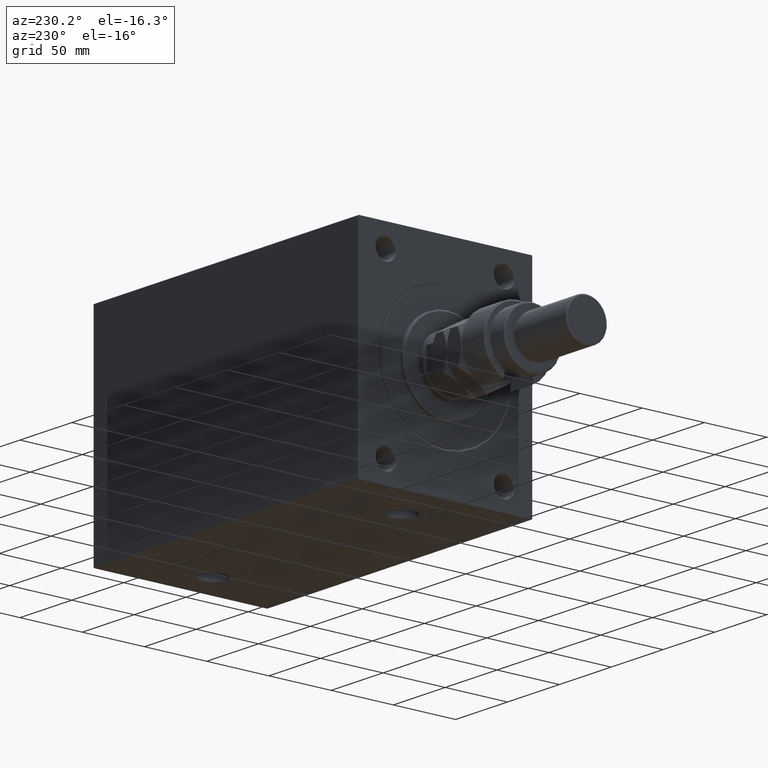
[diagram: clean part render]
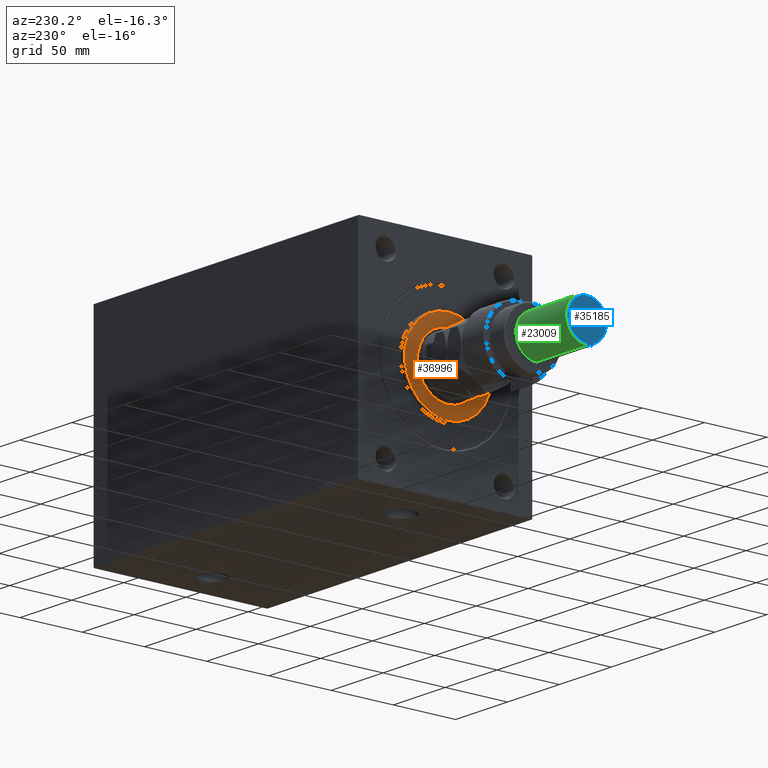
[diagram: same view with three faces highlighted in distinct colors, each labeled with its STEP entity id]
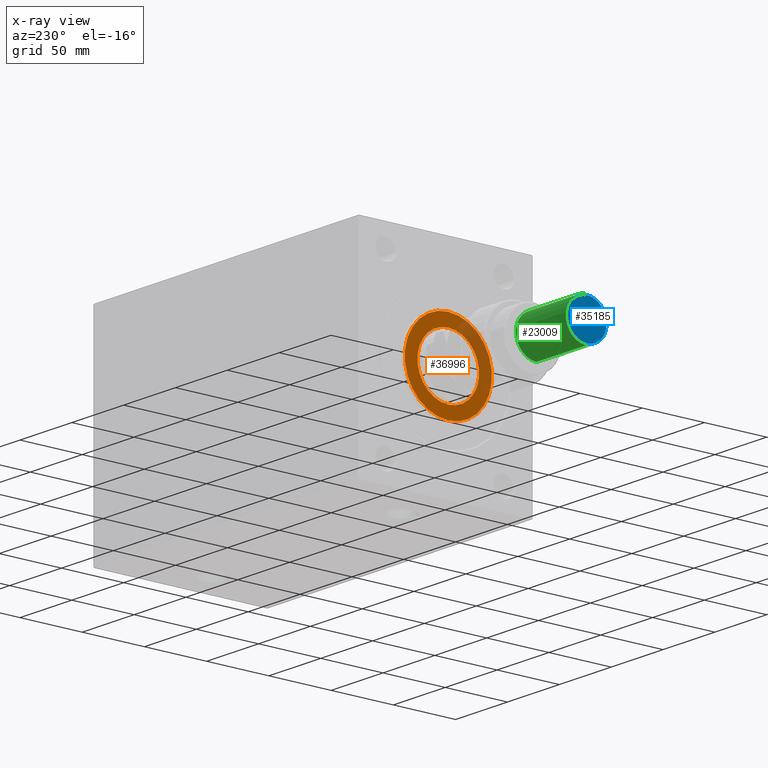
[diagram: x-ray of the same camera — body ghosted, the three highlighted faces saturated]
A machine part, auxiliary view with three faces highlighted in distinct colors.
The next image is the same camera in x-ray (body ghosted, the three faces saturated) — at least one of them is partly hidden behind the body in this view.
Their STEP definitions:

[orange] entity #36996 — the highlighted planar face has unit normal (-1, 0, 0).
#595 = FACE_OUTER_BOUND ( 'NONE', #16630, .T. ) ;
#702 = CARTESIAN_POINT ( 'NONE',  ( 3.000000000000000000, 0.000000000000000000, -24.75000000000000355 ) ) ;
#725 = DIRECTION ( 'NONE',  ( 1.000000000000000000, -0.000000000000000000, 0.000000000000000000 ) ) ;
#1072 = DIRECTION ( 'NONE',  ( 1.000000000000000000, -0.000000000000000000, 0.000000000000000000 ) ) ;
#4660 = CARTESIAN_POINT ( 'NONE',  ( 3.000000000000000000, 0.000000000000000000, 0.000000000000000000 ) ) ;
#5187 = VERTEX_POINT ( 'NONE', #34739 ) ;
#6877 = ORIENTED_EDGE ( 'NONE', *, *, #30518, .F. ) ;
#7527 = EDGE_LOOP ( 'NONE', ( #21898, #6877 ) ) ;
#8133 = CARTESIAN_POINT ( 'NONE',  ( 3.000000000000000000, 0.000000000000000000, 0.000000000000000000 ) ) ;
#10656 = DIRECTION ( 'NONE',  ( 1.000000000000000000, 0.000000000000000000, 0.000000000000000000 ) ) ;
#13281 = ORIENTED_EDGE ( 'NONE', *, *, #19871, .T. ) ;
#15013 = DIRECTION ( 'NONE',  ( 1.000000000000000000, 0.000000000000000000, 0.000000000000000000 ) ) ;
#16027 = CARTESIAN_POINT ( 'NONE',  ( 3.000000000000000000, 3.031000827889699650E-15, 24.75000000000000355 ) ) ;
#16630 = EDGE_LOOP ( 'NONE', ( #13281, #41554 ) ) ;
#18258 = DIRECTION ( 'NONE',  ( 0.000000000000000000, 0.000000000000000000, -1.000000000000000000 ) ) ;
#19160 = DIRECTION ( 'NONE',  ( 0.000000000000000000, 0.000000000000000000, -1.000000000000000000 ) ) ;
#19871 = EDGE_CURVE ( 'NONE', #5187, #34610, #41131, .T. ) ;
#20973 = CIRCLE ( 'NONE', #48443, 24.75000000000000355 ) ;
#21079 = VERTEX_POINT ( 'NONE', #16027 ) ;
#21318 = AXIS2_PLACEMENT_3D ( 'NONE', #36941, #10656, #18258 ) ;
#21898 = ORIENTED_EDGE ( 'NONE', *, *, #44842, .F. ) ;
#25093 = AXIS2_PLACEMENT_3D ( 'NONE', #30560, #1072, #45574 ) ;
#27847 = FACE_BOUND ( 'NONE', #7527, .T. ) ;
#28377 = CIRCLE ( 'NONE', #21318, 24.75000000000000355 ) ;
#29021 = DIRECTION ( 'NONE',  ( 0.000000000000000000, 0.000000000000000000, -1.000000000000000000 ) ) ;
#30518 = EDGE_CURVE ( 'NONE', #21079, #30980, #20973, .T. ) ;
#30560 = CARTESIAN_POINT ( 'NONE',  ( 3.000000000000000000, 0.000000000000000000, 0.000000000000000000 ) ) ;
#30980 = VERTEX_POINT ( 'NONE', #702 ) ;
#34184 = DIRECTION ( 'NONE',  ( 0.000000000000000000, 0.000000000000000000, -1.000000000000000000 ) ) ;
#34610 = VERTEX_POINT ( 'NONE', #45519 ) ;
#34734 = PLANE ( 'NONE',  #25093 ) ;
#34739 = CARTESIAN_POINT ( 'NONE',  ( 3.000000000000000000, 0.000000000000000000, 35.00000000000002842 ) ) ;
#36941 = CARTESIAN_POINT ( 'NONE',  ( 3.000000000000000000, 0.000000000000000000, 0.000000000000000000 ) ) ;
#36996 = ADVANCED_FACE ( 'NONE', ( #595, #27847 ), #34734, .T. ) ;
#37120 = DIRECTION ( 'NONE',  ( 1.000000000000000000, -0.000000000000000000, 0.000000000000000000 ) ) ;
#38531 = EDGE_CURVE ( 'NONE', #34610, #5187, #47913, .T. ) ;
#39271 = AXIS2_PLACEMENT_3D ( 'NONE', #4660, #725, #19160 ) ;
#41131 = CIRCLE ( 'NONE', #47440, 35.00000000000002842 ) ;
#41554 = ORIENTED_EDGE ( 'NONE', *, *, #38531, .T. ) ;
#44842 = EDGE_CURVE ( 'NONE', #30980, #21079, #28377, .T. ) ;
#45519 = CARTESIAN_POINT ( 'NONE',  ( 3.000000000000000000, 4.347496136973104859E-15, -35.00000000000002842 ) ) ;
#45574 = DIRECTION ( 'NONE',  ( 0.000000000000000000, 0.000000000000000000, -1.000000000000000000 ) ) ;
#47440 = AXIS2_PLACEMENT_3D ( 'NONE', #47725, #37120, #29021 ) ;
#47725 = CARTESIAN_POINT ( 'NONE',  ( 3.000000000000000000, 0.000000000000000000, 0.000000000000000000 ) ) ;
#47913 = CIRCLE ( 'NONE', #39271, 35.00000000000002842 ) ;
#48443 = AXIS2_PLACEMENT_3D ( 'NONE', #8133, #15013, #34184 ) ;

[blue] entity #35185 — the highlighted planar face has unit normal (-1, 0, 0).
#753 = CARTESIAN_POINT ( 'NONE',  ( 0.000000000000000000, 0.000000000000000000, 89.00000000000000000 ) ) ;
#4278 = CIRCLE ( 'NONE', #13700, 15.50000000000002842 ) ;
#6068 = CIRCLE ( 'NONE', #11552, 15.50000000000002842 ) ;
#8857 = EDGE_LOOP ( 'NONE', ( #22349, #23058 ) ) ;
#9310 = CARTESIAN_POINT ( 'NONE',  ( 0.000000000000000000, 0.000000000000000000, 89.00000000000000000 ) ) ;
#10672 = VERTEX_POINT ( 'NONE', #18989 ) ;
#11552 = AXIS2_PLACEMENT_3D ( 'NONE', #753, #19435, #45009 ) ;
#13700 = AXIS2_PLACEMENT_3D ( 'NONE', #34595, #15914, #38521 ) ;
#15914 = DIRECTION ( 'NONE',  ( 0.000000000000000000, 0.000000000000000000, 1.000000000000000000 ) ) ;
#18989 = CARTESIAN_POINT ( 'NONE',  ( -15.50000000000002842, 0.000000000000000000, 89.00000000000000000 ) ) ;
#19435 = DIRECTION ( 'NONE',  ( 0.000000000000000000, 0.000000000000000000, 1.000000000000000000 ) ) ;
#20384 = PLANE ( 'NONE',  #38379 ) ;
#21274 = EDGE_CURVE ( 'NONE', #10672, #29843, #4278, .T. ) ;
#22349 = ORIENTED_EDGE ( 'NONE', *, *, #21274, .T. ) ;
#23058 = ORIENTED_EDGE ( 'NONE', *, *, #30612, .T. ) ;
#24302 = DIRECTION ( 'NONE',  ( 0.000000000000000000, 0.000000000000000000, 1.000000000000000000 ) ) ;
#29843 = VERTEX_POINT ( 'NONE', #36110 ) ;
#30612 = EDGE_CURVE ( 'NONE', #29843, #10672, #6068, .T. ) ;
#32400 = FACE_OUTER_BOUND ( 'NONE', #8857, .T. ) ;
#34595 = CARTESIAN_POINT ( 'NONE',  ( 0.000000000000000000, 0.000000000000000000, 89.00000000000000000 ) ) ;
#35185 = ADVANCED_FACE ( 'NONE', ( #32400 ), #20384, .T. ) ;
#36110 = CARTESIAN_POINT ( 'NONE',  ( 15.50000000000002842, 1.959434878635767104E-15, 89.00000000000000000 ) ) ;
#38379 = AXIS2_PLACEMENT_3D ( 'NONE', #9310, #24302, #47404 ) ;
#38521 = DIRECTION ( 'NONE',  ( 1.000000000000000000, 0.000000000000000000, 0.000000000000000000 ) ) ;
#45009 = DIRECTION ( 'NONE',  ( 1.000000000000000000, 0.000000000000000000, 0.000000000000000000 ) ) ;
#47404 = DIRECTION ( 'NONE',  ( 1.000000000000000000, 0.000000000000000000, -0.000000000000000000 ) ) ;

[green] entity #23009 — the highlighted cylindrical surface (edge-blend (fillet) strip) has radius 16.5 mm, axis along (1, -0, -0).
#417 = VERTEX_POINT ( 'NONE', #17816 ) ;
#658 = ORIENTED_EDGE ( 'NONE', *, *, #8573, .F. ) ;
#2436 = CYLINDRICAL_SURFACE ( 'NONE', #39663, 16.50000000000000000 ) ;
#5020 = LINE ( 'NONE', #11891, #33327 ) ;
#6677 = CARTESIAN_POINT ( 'NONE',  ( 16.50000000000000000, 2.020667218593133100E-15, 89.00000000000000000 ) ) ;
#7423 = VERTEX_POINT ( 'NONE', #45415 ) ;
#8573 = EDGE_CURVE ( 'NONE', #15334, #7423, #5020, .T. ) ;
#9407 = VERTEX_POINT ( 'NONE', #37485 ) ;
#10351 = ORIENTED_EDGE ( 'NONE', *, *, #21578, .T. ) ;
#10578 = AXIS2_PLACEMENT_3D ( 'NONE', #44403, #43923, #25710 ) ;
#11891 = CARTESIAN_POINT ( 'NONE',  ( -16.50000000000000000, 0.000000000000000000, 89.00000000000000000 ) ) ;
#12293 = CIRCLE ( 'NONE', #14643, 16.50000000000000000 ) ;
#12618 = DIRECTION ( 'NONE',  ( -0.000000000000000000, -0.000000000000000000, -1.000000000000000000 ) ) ;
#14563 = DIRECTION ( 'NONE',  ( 1.000000000000000000, 0.000000000000000000, 0.000000000000000000 ) ) ;
#14643 = AXIS2_PLACEMENT_3D ( 'NONE', #48494, #33254, #14563 ) ;
#15334 = VERTEX_POINT ( 'NONE', #40460 ) ;
#17659 = DIRECTION ( 'NONE',  ( -1.000000000000000000, 0.000000000000000000, 0.000000000000000000 ) ) ;
#17816 = CARTESIAN_POINT ( 'NONE',  ( 16.50000000000000000, 2.020667218593133100E-15, 88.00000000000001421 ) ) ;
#17944 = EDGE_LOOP ( 'NONE', ( #29415, #47978, #10351, #658 ) ) ;
#19903 = EDGE_CURVE ( 'NONE', #417, #9407, #21662, .T. ) ;
#20395 = DIRECTION ( 'NONE',  ( -0.000000000000000000, -0.000000000000000000, -1.000000000000000000 ) ) ;
#20882 = CARTESIAN_POINT ( 'NONE',  ( 0.000000000000000000, 0.000000000000000000, 89.00000000000000000 ) ) ;
#21578 = EDGE_CURVE ( 'NONE', #9407, #7423, #23949, .T. ) ;
#21662 = LINE ( 'NONE', #6677, #45853 ) ;
#23009 = ADVANCED_FACE ( 'NONE', ( #28957 ), #2436, .T. ) ;
#23949 = CIRCLE ( 'NONE', #10578, 16.50000000000000000 ) ;
#25710 = DIRECTION ( 'NONE',  ( 1.000000000000000000, 0.000000000000000000, 0.000000000000000000 ) ) ;
#26000 = EDGE_CURVE ( 'NONE', #15334, #417, #12293, .T. ) ;
#28957 = FACE_OUTER_BOUND ( 'NONE', #17944, .T. ) ;
#29415 = ORIENTED_EDGE ( 'NONE', *, *, #26000, .T. ) ;
#33254 = DIRECTION ( 'NONE',  ( 0.000000000000000000, 0.000000000000000000, -1.000000000000000000 ) ) ;
#33327 = VECTOR ( 'NONE', #12618, 1000.000000000000000 ) ;
#33437 = DIRECTION ( 'NONE',  ( -0.000000000000000000, -0.000000000000000000, -1.000000000000000000 ) ) ;
#37485 = CARTESIAN_POINT ( 'NONE',  ( 16.50000000000000000, 2.020667218593133100E-15, 39.99999999999998579 ) ) ;
#39663 = AXIS2_PLACEMENT_3D ( 'NONE', #20882, #20395, #17659 ) ;
#40460 = CARTESIAN_POINT ( 'NONE',  ( -16.50000000000000000, 0.000000000000000000, 88.00000000000001421 ) ) ;
#43923 = DIRECTION ( 'NONE',  ( -0.000000000000000000, -0.000000000000000000, 1.000000000000000000 ) ) ;
#44403 = CARTESIAN_POINT ( 'NONE',  ( 0.000000000000000000, 0.000000000000000000, 39.99999999999998579 ) ) ;
#45415 = CARTESIAN_POINT ( 'NONE',  ( -16.50000000000000000, 0.000000000000000000, 39.99999999999998579 ) ) ;
#45853 = VECTOR ( 'NONE', #33437, 1000.000000000000000 ) ;
#47978 = ORIENTED_EDGE ( 'NONE', *, *, #19903, .T. ) ;
#48494 = CARTESIAN_POINT ( 'NONE',  ( 0.000000000000000000, 0.000000000000000000, 88.00000000000001421 ) ) ;